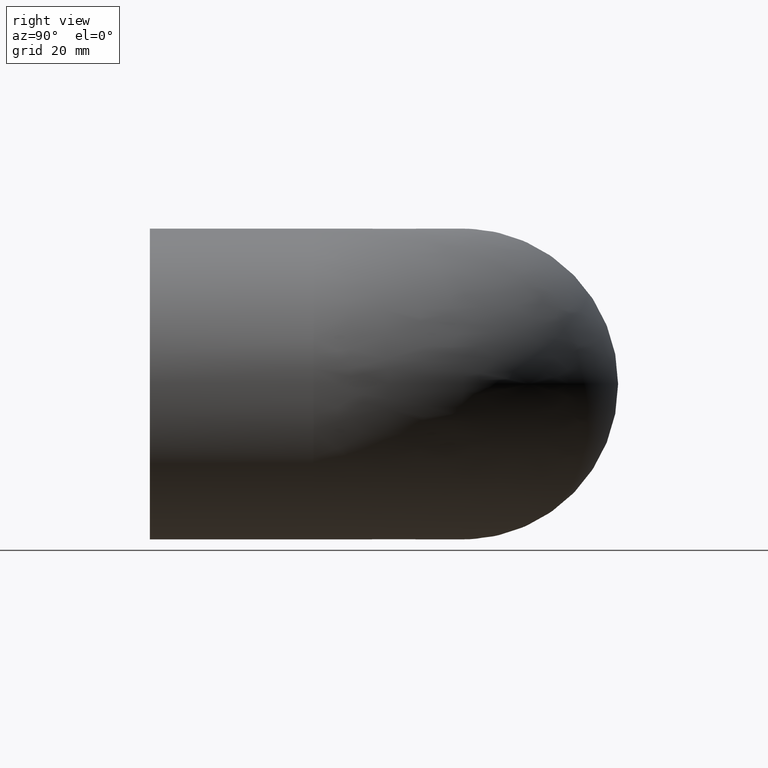
[diagram: clean part render]
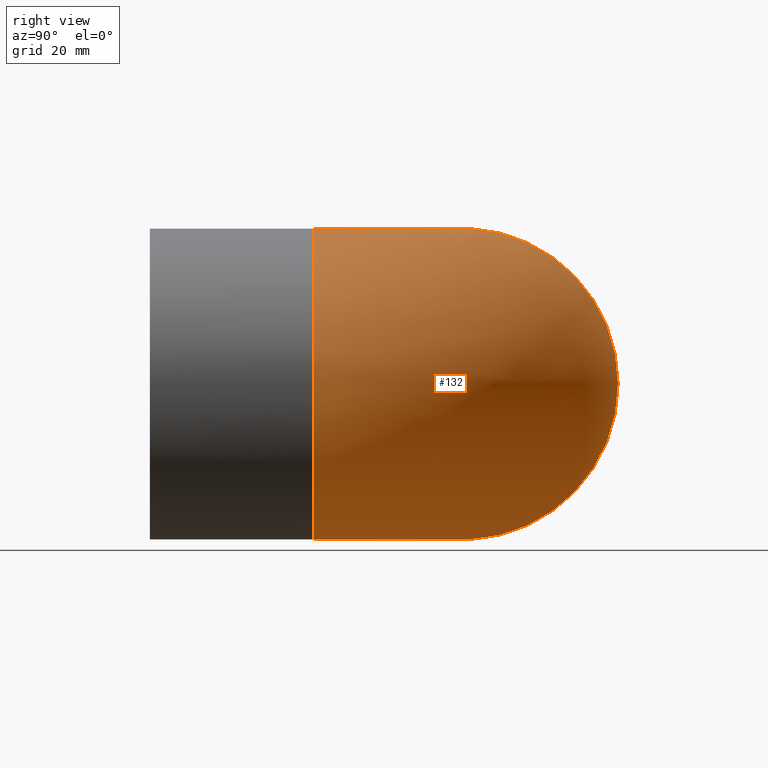
[diagram: same view with one face highlighted and labeled with its STEP entity id]
A machine part, right view. The second image highlights one B-rep face of the part: STEP entity #132.
In plain terms, the highlighted face is a freeform B-spline surface patch.
Its self-contained STEP definition (entity closure, byte-faithful):
#16=(
BOUNDED_SURFACE()
B_SPLINE_SURFACE(2,2,((#226,#227,#228),(#229,#230,#231),(#232,#233,#234),
(#235,#236,#237),(#238,#239,#240),(#241,#242,#243),(#244,#245,#246),(#247,
#248,#249),(#250,#251,#252)),.UNSPECIFIED.,.F.,.F.,.F.)
B_SPLINE_SURFACE_WITH_KNOTS((3,2,2,2,3),(3,3),(-2.85391055417343,-1.42695527708671,
0.,1.42695527708671,2.85391055417343),(1.5707963267949,3.14159265358979),
 .UNSPECIFIED.)
GEOMETRIC_REPRESENTATION_ITEM()
RATIONAL_B_SPLINE_SURFACE(((1.,0.707106781186548,1.),(0.75609045251552,
0.53463668616413,0.75609045251552),(1.,0.707106781186548,1.),(0.75609045251552,
0.534636686164129,0.75609045251552),(1.,0.707106781186548,1.),(0.75609045251552,
0.534636686164129,0.75609045251552),(1.,0.707106781186548,1.),(0.75609045251552,
0.53463668616413,0.75609045251552),(1.,0.707106781186548,1.)))
REPRESENTATION_ITEM('')
SURFACE()
);
#40=FACE_OUTER_BOUND('',#56,.T.);
#56=EDGE_LOOP('',(#111,#112));
#73=CIRCLE('',#151,36.5);
#74=CIRCLE('',#152,36.5);
#84=VERTEX_POINT('',#253);
#85=VERTEX_POINT('',#254);
#95=EDGE_CURVE('',#84,#85,#73,.T.);
#96=EDGE_CURVE('',#85,#84,#74,.T.);
#111=ORIENTED_EDGE('',*,*,#95,.T.);
#112=ORIENTED_EDGE('',*,*,#96,.T.);
#132=ADVANCED_FACE('',(#40),#16,.F.);
#151=AXIS2_PLACEMENT_3D('',#255,#186,#187);
#152=AXIS2_PLACEMENT_3D('',#256,#188,#189);
#186=DIRECTION('center_axis',(1.,0.,0.));
#187=DIRECTION('ref_axis',(0.,0.,-1.));
#188=DIRECTION('center_axis',(6.12323399573677E-17,1.,0.));
#189=DIRECTION('ref_axis',(0.,0.,-1.));
#226=CARTESIAN_POINT('Ctrl Pts',(-35.,-35.,10.3561575886039));
#227=CARTESIAN_POINT('Ctrl Pts',(-35.,-35.,10.3561575886039));
#228=CARTESIAN_POINT('Ctrl Pts',(-35.,-35.,10.3561575886039));
#229=CARTESIAN_POINT('Ctrl Pts',(-35.,-26.0357752317719,40.6519370998425));
#230=CARTESIAN_POINT('Ctrl Pts',(-26.0357752317719,-26.0357752317719,40.6519370998425));
#231=CARTESIAN_POINT('Ctrl Pts',(-26.0357752317719,-35.,40.6519370998425));
#232=CARTESIAN_POINT('Ctrl Pts',(-35.,5.23211238411408,36.1230535807813));
#233=CARTESIAN_POINT('Ctrl Pts',(5.23211238411407,5.23211238411407,36.1230535807813));
#234=CARTESIAN_POINT('Ctrl Pts',(5.23211238411408,-35.,36.1230535807813));
#235=CARTESIAN_POINT('Ctrl Pts',(-35.,36.5,31.5941700617202));
#236=CARTESIAN_POINT('Ctrl Pts',(36.5,36.5,31.5941700617202));
#237=CARTESIAN_POINT('Ctrl Pts',(36.5,-35.,31.5941700617202));
#238=CARTESIAN_POINT('Ctrl Pts',(-35.,36.5,0.));
#239=CARTESIAN_POINT('Ctrl Pts',(36.5,36.5,0.));
#240=CARTESIAN_POINT('Ctrl Pts',(36.5,-35.,0.));
#241=CARTESIAN_POINT('Ctrl Pts',(-35.,36.5,-31.5941700617202));
#242=CARTESIAN_POINT('Ctrl Pts',(36.5,36.5,-31.5941700617202));
#243=CARTESIAN_POINT('Ctrl Pts',(36.5,-35.,-31.5941700617202));
#244=CARTESIAN_POINT('Ctrl Pts',(-35.,5.23211238411408,-36.1230535807813));
#245=CARTESIAN_POINT('Ctrl Pts',(5.23211238411407,5.23211238411407,-36.1230535807813));
#246=CARTESIAN_POINT('Ctrl Pts',(5.23211238411408,-35.,-36.1230535807813));
#247=CARTESIAN_POINT('Ctrl Pts',(-35.,-26.0357752317719,-40.6519370998425));
#248=CARTESIAN_POINT('Ctrl Pts',(-26.0357752317719,-26.0357752317719,-40.6519370998425));
#249=CARTESIAN_POINT('Ctrl Pts',(-26.0357752317719,-35.,-40.6519370998425));
#250=CARTESIAN_POINT('Ctrl Pts',(-35.,-35.,-10.3561575886039));
#251=CARTESIAN_POINT('Ctrl Pts',(-35.,-35.,-10.3561575886039));
#252=CARTESIAN_POINT('Ctrl Pts',(-35.,-35.,-10.3561575886039));
#253=CARTESIAN_POINT('',(-35.,-35.,-10.356157588604));
#254=CARTESIAN_POINT('',(-35.,-35.,10.356157588604));
#255=CARTESIAN_POINT('Origin',(-35.,0.,0.));
#256=CARTESIAN_POINT('Origin',(-2.14313189850787E-15,-35.,0.));